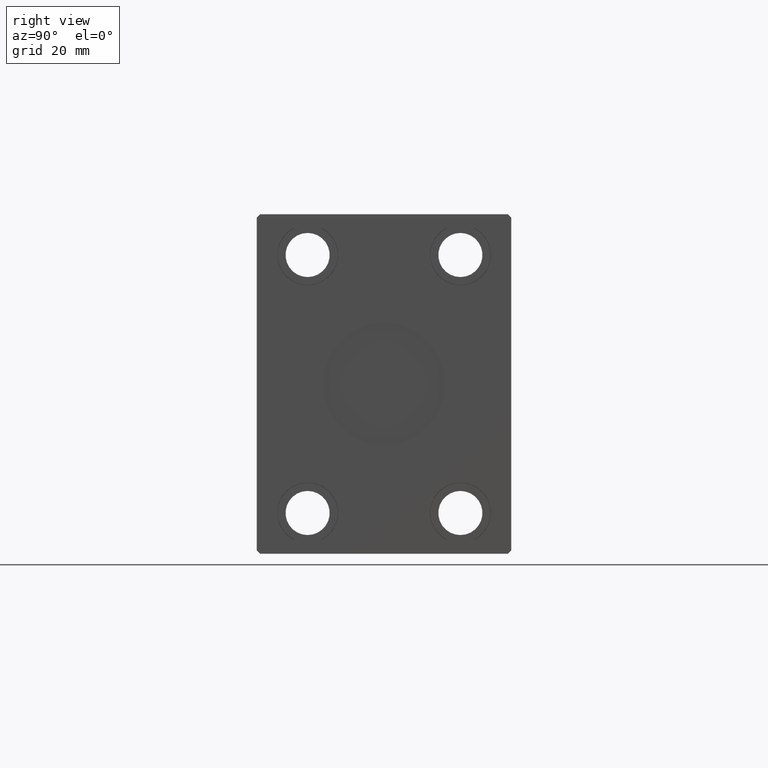
[diagram: clean part render]
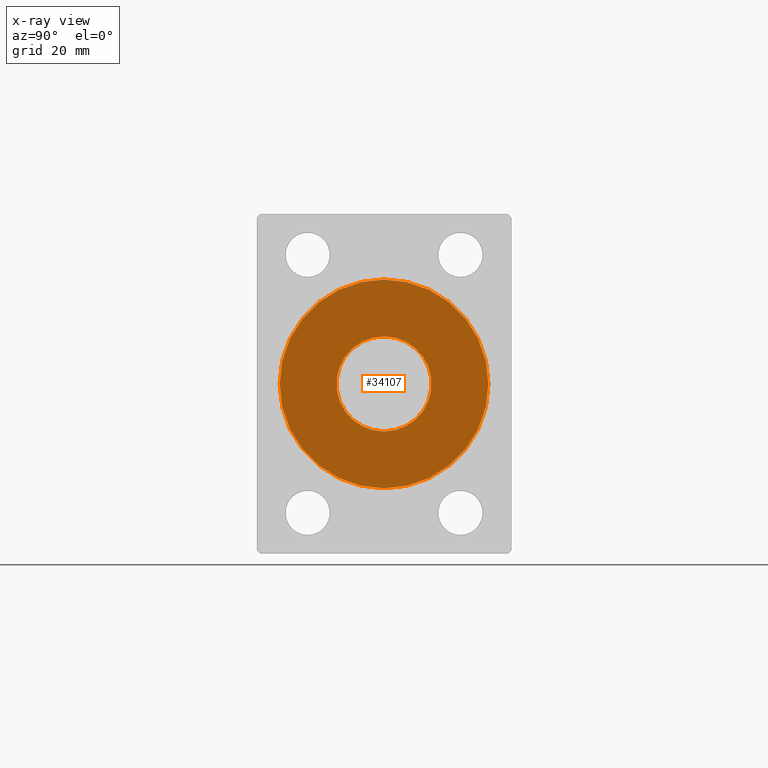
[diagram: x-ray — body ghosted, one internal face saturated and labeled with its STEP entity id]
A machine part, right view, then the same camera in x-ray: the body is ghosted and one INTERNAL B-rep face — a face not visible from any outside direction — is saturated and labeled: STEP entity #34107.
In plain terms, the highlighted planar face has unit normal (-1, 0, 0).
Its self-contained STEP definition (entity closure, byte-faithful):
#973 = DIRECTION ( 'NONE',  ( -0.000000000000000000, 0.000000000000000000, 1.000000000000000000 ) ) ;
#2660 = DIRECTION ( 'NONE',  ( -0.000000000000000000, 0.000000000000000000, 1.000000000000000000 ) ) ;
#3329 = CARTESIAN_POINT ( 'NONE',  ( -30.75000000000000355, 0.000000000000000000, 0.000000000000000000 ) ) ;
#3698 = CARTESIAN_POINT ( 'NONE',  ( 0.000000000000000000, 0.000000000000000000, 0.000000000000000000 ) ) ;
#4507 = VERTEX_POINT ( 'NONE', #19453 ) ;
#6177 = EDGE_LOOP ( 'NONE', ( #33217, #43449 ) ) ;
#6703 = DIRECTION ( 'NONE',  ( 1.000000000000000000, 0.000000000000000000, 0.000000000000000000 ) ) ;
#7158 = FACE_BOUND ( 'NONE', #7533, .T. ) ;
#7533 = EDGE_LOOP ( 'NONE', ( #39825, #18018 ) ) ;
#7815 = DIRECTION ( 'NONE',  ( 1.000000000000000000, 0.000000000000000000, -0.000000000000000000 ) ) ;
#9937 = AXIS2_PLACEMENT_3D ( 'NONE', #3698, #973, #17395 ) ;
#10401 = AXIS2_PLACEMENT_3D ( 'NONE', #19731, #2660, #6703 ) ;
#12325 = DIRECTION ( 'NONE',  ( 1.000000000000000000, 0.000000000000000000, 0.000000000000000000 ) ) ;
#15394 = CIRCLE ( 'NONE', #10401, 14.00000000000000000 ) ;
#17395 = DIRECTION ( 'NONE',  ( 1.000000000000000000, 0.000000000000000000, 0.000000000000000000 ) ) ;
#17485 = CARTESIAN_POINT ( 'NONE',  ( 0.000000000000000000, 0.000000000000000000, 0.000000000000000000 ) ) ;
#17559 = VERTEX_POINT ( 'NONE', #3329 ) ;
#18018 = ORIENTED_EDGE ( 'NONE', *, *, #37289, .T. ) ;
#19453 = CARTESIAN_POINT ( 'NONE',  ( -14.00000000000000000, 0.000000000000000000, 0.000000000000000000 ) ) ;
#19643 = CIRCLE ( 'NONE', #21185, 30.75000000000000355 ) ;
#19731 = CARTESIAN_POINT ( 'NONE',  ( 0.000000000000000000, 0.000000000000000000, 0.000000000000000000 ) ) ;
#19919 = DIRECTION ( 'NONE',  ( 1.000000000000000000, 0.000000000000000000, 0.000000000000000000 ) ) ;
#20354 = AXIS2_PLACEMENT_3D ( 'NONE', #17485, #35472, #7815 ) ;
#20904 = CARTESIAN_POINT ( 'NONE',  ( 14.00000000000000000, 1.714505518806294638E-15, 0.000000000000000000 ) ) ;
#21185 = AXIS2_PLACEMENT_3D ( 'NONE', #29402, #26028, #12325 ) ;
#25444 = EDGE_CURVE ( 'NONE', #17559, #37682, #19643, .T. ) ;
#26028 = DIRECTION ( 'NONE',  ( 0.000000000000000000, 0.000000000000000000, 1.000000000000000000 ) ) ;
#26465 = CIRCLE ( 'NONE', #42979, 30.75000000000000355 ) ;
#29402 = CARTESIAN_POINT ( 'NONE',  ( 0.000000000000000000, 0.000000000000000000, 0.000000000000000000 ) ) ;
#30065 = CIRCLE ( 'NONE', #9937, 14.00000000000000000 ) ;
#30294 = CARTESIAN_POINT ( 'NONE',  ( 0.000000000000000000, 0.000000000000000000, 0.000000000000000000 ) ) ;
#32058 = EDGE_CURVE ( 'NONE', #4507, #36372, #15394, .T. ) ;
#33217 = ORIENTED_EDGE ( 'NONE', *, *, #25444, .F. ) ;
#33719 = CARTESIAN_POINT ( 'NONE',  ( 30.75000000000000355, 3.765788907378111328E-15, 0.000000000000000000 ) ) ;
#34107 = ADVANCED_FACE ( 'NONE', ( #34589, #7158 ), #38619, .F. ) ;
#34589 = FACE_OUTER_BOUND ( 'NONE', #6177, .T. ) ;
#35472 = DIRECTION ( 'NONE',  ( 0.000000000000000000, 0.000000000000000000, 1.000000000000000000 ) ) ;
#36372 = VERTEX_POINT ( 'NONE', #20904 ) ;
#36816 = DIRECTION ( 'NONE',  ( 0.000000000000000000, 0.000000000000000000, 1.000000000000000000 ) ) ;
#36911 = EDGE_CURVE ( 'NONE', #37682, #17559, #26465, .T. ) ;
#37289 = EDGE_CURVE ( 'NONE', #36372, #4507, #30065, .T. ) ;
#37682 = VERTEX_POINT ( 'NONE', #33719 ) ;
#38619 = PLANE ( 'NONE',  #20354 ) ;
#39825 = ORIENTED_EDGE ( 'NONE', *, *, #32058, .T. ) ;
#42979 = AXIS2_PLACEMENT_3D ( 'NONE', #30294, #36816, #19919 ) ;
#43449 = ORIENTED_EDGE ( 'NONE', *, *, #36911, .F. ) ;